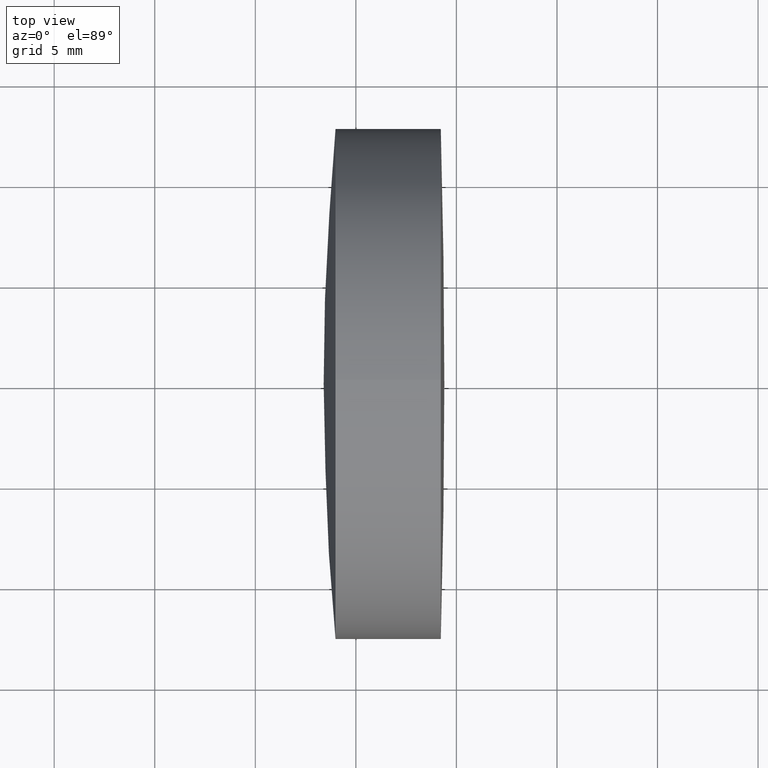
[diagram: clean part render]
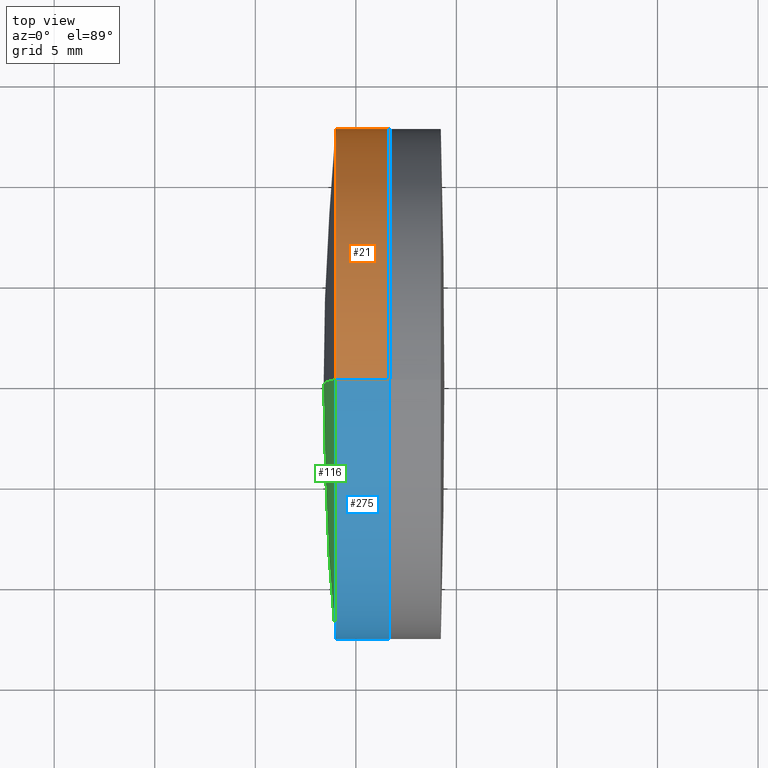
[diagram: same view with three faces highlighted in distinct colors, each labeled with its STEP entity id]
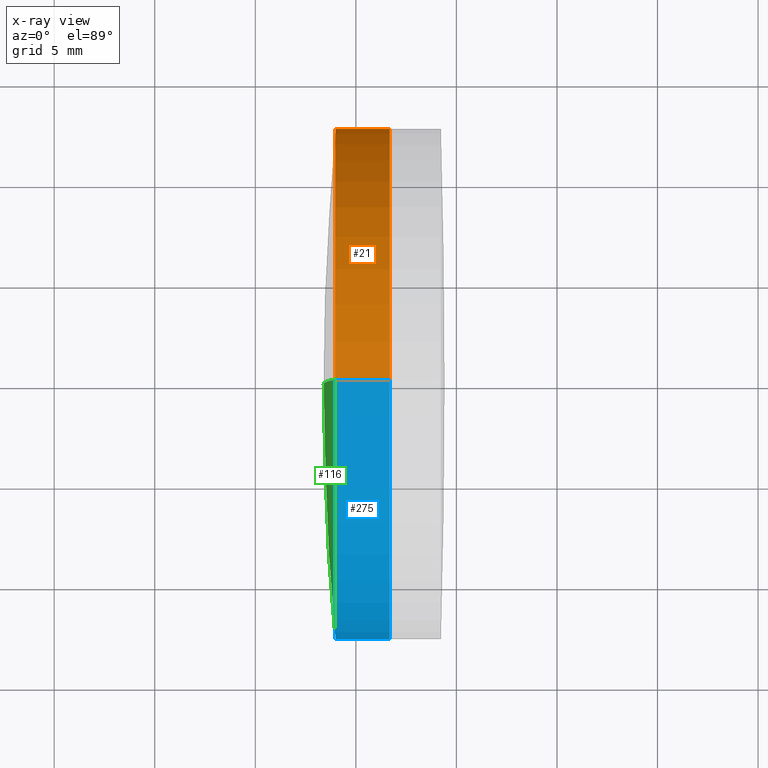
[diagram: x-ray of the same camera — body ghosted, the three highlighted faces saturated]
A machine part, top view with three faces highlighted in distinct colors.
The next image is the same camera in x-ray (body ghosted, the three faces saturated) — at least one of them is partly hidden behind the body in this view.
Their STEP definitions:

[orange] entity #21 — the highlighted cylindrical surface (partial cylindrical patch) has radius 12.7 mm, axis along (-1, -0, -0).
#9 = AXIS2_PLACEMENT_3D ( 'NONE', #260, #322, #71 ) ;
#19 = CYLINDRICAL_SURFACE ( 'NONE', #170, 12.69999999999999600 ) ;
#21 = ADVANCED_FACE ( 'NONE', ( #347 ), #19, .T. ) ;
#62 = VERTEX_POINT ( 'NONE', #145 ) ;
#70 = CARTESIAN_POINT ( 'NONE',  ( 291.6738128087178000, 0.0000000000000000000, 12.69999999999999400 ) ) ;
#71 = DIRECTION ( 'NONE',  ( 0.0000000000000000000, 0.0000000000000000000, 1.000000000000000000 ) ) ;
#76 = EDGE_CURVE ( 'NONE', #262, #169, #233, .T. ) ;
#84 = CARTESIAN_POINT ( 'NONE',  ( 288.9889351273912400, 0.0000000000000000000, 12.69999999999995700 ) ) ;
#94 = EDGE_CURVE ( 'NONE', #281, #62, #219, .T. ) ;
#96 = EDGE_CURVE ( 'NONE', #262, #281, #229, .T. ) ;
#134 = DIRECTION ( 'NONE',  ( -1.000000000000000000, -0.0000000000000000000, -0.0000000000000000000 ) ) ;
#142 = DIRECTION ( 'NONE',  ( -1.000000000000000000, -0.0000000000000000000, -0.0000000000000000000 ) ) ;
#145 = CARTESIAN_POINT ( 'NONE',  ( 288.9889351273912400, 1.555301434917133100E-015, -12.69999999999996000 ) ) ;
#151 = AXIS2_PLACEMENT_3D ( 'NONE', #292, #134, #243 ) ;
#160 = CARTESIAN_POINT ( 'NONE',  ( 235.8074506907544200, 1.555301434917138000E-015, -12.69999999999999600 ) ) ;
#169 = VERTEX_POINT ( 'NONE', #250 ) ;
#170 = AXIS2_PLACEMENT_3D ( 'NONE', #337, #142, #214 ) ;
#181 = EDGE_LOOP ( 'NONE', ( #311, #232, #206, #211 ) ) ;
#189 = EDGE_CURVE ( 'NONE', #169, #62, #220, .T. ) ;
#193 = DIRECTION ( 'NONE',  ( -1.000000000000000000, -0.0000000000000000000, -0.0000000000000000000 ) ) ;
#203 = VECTOR ( 'NONE', #277, 1000.000000000000000 ) ;
#206 = ORIENTED_EDGE ( 'NONE', *, *, #94, .F. ) ;
#211 = ORIENTED_EDGE ( 'NONE', *, *, #96, .F. ) ;
#214 = DIRECTION ( 'NONE',  ( 0.0000000000000000000, 0.0000000000000000000, 1.000000000000000000 ) ) ;
#219 = CIRCLE ( 'NONE', #151, 12.69999999999999600 ) ;
#220 = LINE ( 'NONE', #160, #327 ) ;
#229 = LINE ( 'NONE', #323, #203 ) ;
#232 = ORIENTED_EDGE ( 'NONE', *, *, #189, .T. ) ;
#233 = CIRCLE ( 'NONE', #9, 12.69999999999999400 ) ;
#243 = DIRECTION ( 'NONE',  ( 0.0000000000000000000, 0.0000000000000000000, 1.000000000000000000 ) ) ;
#250 = CARTESIAN_POINT ( 'NONE',  ( 291.6738128087178000, 1.555301434917138000E-015, -12.69999999999999400 ) ) ;
#260 = CARTESIAN_POINT ( 'NONE',  ( 291.6738128087178000, 0.0000000000000000000, 0.0000000000000000000 ) ) ;
#262 = VERTEX_POINT ( 'NONE', #70 ) ;
#277 = DIRECTION ( 'NONE',  ( -1.000000000000000000, -0.0000000000000000000, -0.0000000000000000000 ) ) ;
#281 = VERTEX_POINT ( 'NONE', #84 ) ;
#292 = CARTESIAN_POINT ( 'NONE',  ( 288.9889351273912400, 0.0000000000000000000, 0.0000000000000000000 ) ) ;
#311 = ORIENTED_EDGE ( 'NONE', *, *, #76, .T. ) ;
#322 = DIRECTION ( 'NONE',  ( -1.000000000000000000, -0.0000000000000000000, -0.0000000000000000000 ) ) ;
#323 = CARTESIAN_POINT ( 'NONE',  ( 235.8074506907544200, 0.0000000000000000000, 12.69999999999999600 ) ) ;
#327 = VECTOR ( 'NONE', #193, 1000.000000000000000 ) ;
#337 = CARTESIAN_POINT ( 'NONE',  ( 235.8074506907544200, 0.0000000000000000000, 0.0000000000000000000 ) ) ;
#347 = FACE_OUTER_BOUND ( 'NONE', #181, .T. ) ;

[blue] entity #275 — the highlighted cylindrical surface (partial cylindrical patch) has radius 12.7 mm, axis along (-1, -0, -0).
#20 = DIRECTION ( 'NONE',  ( -1.000000000000000000, -0.0000000000000000000, -0.0000000000000000000 ) ) ;
#24 = AXIS2_PLACEMENT_3D ( 'NONE', #231, #254, #183 ) ;
#32 = CIRCLE ( 'NONE', #69, 12.69999999999999400 ) ;
#35 = ORIENTED_EDGE ( 'NONE', *, *, #165, .T. ) ;
#62 = VERTEX_POINT ( 'NONE', #145 ) ;
#63 = CIRCLE ( 'NONE', #173, 12.69999999999999600 ) ;
#68 = DIRECTION ( 'NONE',  ( 0.0000000000000000000, 0.0000000000000000000, 1.000000000000000000 ) ) ;
#69 = AXIS2_PLACEMENT_3D ( 'NONE', #137, #20, #340 ) ;
#70 = CARTESIAN_POINT ( 'NONE',  ( 291.6738128087178000, 0.0000000000000000000, 12.69999999999999400 ) ) ;
#77 = EDGE_LOOP ( 'NONE', ( #95, #35, #237, #188 ) ) ;
#84 = CARTESIAN_POINT ( 'NONE',  ( 288.9889351273912400, 0.0000000000000000000, 12.69999999999995700 ) ) ;
#95 = ORIENTED_EDGE ( 'NONE', *, *, #189, .F. ) ;
#96 = EDGE_CURVE ( 'NONE', #262, #281, #229, .T. ) ;
#101 = CYLINDRICAL_SURFACE ( 'NONE', #24, 12.69999999999999600 ) ;
#137 = CARTESIAN_POINT ( 'NONE',  ( 291.6738128087178000, 0.0000000000000000000, 0.0000000000000000000 ) ) ;
#145 = CARTESIAN_POINT ( 'NONE',  ( 288.9889351273912400, 1.555301434917133100E-015, -12.69999999999996000 ) ) ;
#160 = CARTESIAN_POINT ( 'NONE',  ( 235.8074506907544200, 1.555301434917138000E-015, -12.69999999999999600 ) ) ;
#165 = EDGE_CURVE ( 'NONE', #169, #262, #32, .T. ) ;
#169 = VERTEX_POINT ( 'NONE', #250 ) ;
#173 = AXIS2_PLACEMENT_3D ( 'NONE', #194, #259, #68 ) ;
#183 = DIRECTION ( 'NONE',  ( 0.0000000000000000000, 0.0000000000000000000, 1.000000000000000000 ) ) ;
#188 = ORIENTED_EDGE ( 'NONE', *, *, #276, .F. ) ;
#189 = EDGE_CURVE ( 'NONE', #169, #62, #220, .T. ) ;
#193 = DIRECTION ( 'NONE',  ( -1.000000000000000000, -0.0000000000000000000, -0.0000000000000000000 ) ) ;
#194 = CARTESIAN_POINT ( 'NONE',  ( 288.9889351273912400, 0.0000000000000000000, 0.0000000000000000000 ) ) ;
#203 = VECTOR ( 'NONE', #277, 1000.000000000000000 ) ;
#204 = FACE_OUTER_BOUND ( 'NONE', #77, .T. ) ;
#220 = LINE ( 'NONE', #160, #327 ) ;
#229 = LINE ( 'NONE', #323, #203 ) ;
#231 = CARTESIAN_POINT ( 'NONE',  ( 235.8074506907544200, 0.0000000000000000000, 0.0000000000000000000 ) ) ;
#237 = ORIENTED_EDGE ( 'NONE', *, *, #96, .T. ) ;
#250 = CARTESIAN_POINT ( 'NONE',  ( 291.6738128087178000, 1.555301434917138000E-015, -12.69999999999999400 ) ) ;
#254 = DIRECTION ( 'NONE',  ( -1.000000000000000000, -0.0000000000000000000, -0.0000000000000000000 ) ) ;
#259 = DIRECTION ( 'NONE',  ( -1.000000000000000000, -0.0000000000000000000, -0.0000000000000000000 ) ) ;
#262 = VERTEX_POINT ( 'NONE', #70 ) ;
#275 = ADVANCED_FACE ( 'NONE', ( #204 ), #101, .T. ) ;
#276 = EDGE_CURVE ( 'NONE', #62, #281, #63, .T. ) ;
#277 = DIRECTION ( 'NONE',  ( -1.000000000000000000, -0.0000000000000000000, -0.0000000000000000000 ) ) ;
#281 = VERTEX_POINT ( 'NONE', #84 ) ;
#323 = CARTESIAN_POINT ( 'NONE',  ( 235.8074506907544200, 0.0000000000000000000, 12.69999999999999600 ) ) ;
#327 = VECTOR ( 'NONE', #193, 1000.000000000000000 ) ;
#340 = DIRECTION ( 'NONE',  ( 0.0000000000000000000, 0.0000000000000000000, 1.000000000000000000 ) ) ;

[green] entity #116 — the highlighted spherical surface has radius 137.1 mm.
#12 = EDGE_CURVE ( 'NONE', #281, #100, #332, .T. ) ;
#62 = VERTEX_POINT ( 'NONE', #145 ) ;
#63 = CIRCLE ( 'NONE', #173, 12.69999999999999600 ) ;
#68 = DIRECTION ( 'NONE',  ( 0.0000000000000000000, 0.0000000000000000000, 1.000000000000000000 ) ) ;
#79 = AXIS2_PLACEMENT_3D ( 'NONE', #88, #228, #171 ) ;
#80 = ORIENTED_EDGE ( 'NONE', *, *, #276, .T. ) ;
#84 = CARTESIAN_POINT ( 'NONE',  ( 288.9889351273912400, 0.0000000000000000000, 12.69999999999995700 ) ) ;
#88 = CARTESIAN_POINT ( 'NONE',  ( 425.4994475431022900, 0.0000000000000000000, -3.630634082691148100E-015 ) ) ;
#97 = ORIENTED_EDGE ( 'NONE', *, *, #12, .T. ) ;
#100 = VERTEX_POINT ( 'NONE', #257 ) ;
#116 = ADVANCED_FACE ( 'NONE', ( #147 ), #126, .T. ) ;
#120 = DIRECTION ( 'NONE',  ( 0.0000000000000000000, 0.0000000000000000000, 1.000000000000000000 ) ) ;
#124 = EDGE_LOOP ( 'NONE', ( #270, #80, #97 ) ) ;
#126 = SPHERICAL_SURFACE ( 'NONE', #298, 137.0999999999999900 ) ;
#145 = CARTESIAN_POINT ( 'NONE',  ( 288.9889351273912400, 1.555301434917133100E-015, -12.69999999999996000 ) ) ;
#147 = FACE_OUTER_BOUND ( 'NONE', #124, .T. ) ;
#163 = DIRECTION ( 'NONE',  ( 0.0000000000000000000, -1.000000000000000000, 0.0000000000000000000 ) ) ;
#171 = DIRECTION ( 'NONE',  ( 0.0000000000000000000, -1.224646799147353200E-016, 1.000000000000000000 ) ) ;
#173 = AXIS2_PLACEMENT_3D ( 'NONE', #194, #259, #68 ) ;
#174 = CARTESIAN_POINT ( 'NONE',  ( 425.4994475431022900, 0.0000000000000000000, -3.630634082691148100E-015 ) ) ;
#194 = CARTESIAN_POINT ( 'NONE',  ( 288.9889351273912400, 0.0000000000000000000, 0.0000000000000000000 ) ) ;
#221 = EDGE_CURVE ( 'NONE', #62, #100, #303, .T. ) ;
#228 = DIRECTION ( 'NONE',  ( -0.0000000000000000000, 1.000000000000000000, 1.224646799147353200E-016 ) ) ;
#257 = CARTESIAN_POINT ( 'NONE',  ( 288.3994475431023300, 0.0000000000000000000, 4.764319725463957600E-015 ) ) ;
#259 = DIRECTION ( 'NONE',  ( -1.000000000000000000, -0.0000000000000000000, -0.0000000000000000000 ) ) ;
#265 = AXIS2_PLACEMENT_3D ( 'NONE', #174, #163, #282 ) ;
#270 = ORIENTED_EDGE ( 'NONE', *, *, #221, .F. ) ;
#276 = EDGE_CURVE ( 'NONE', #62, #281, #63, .T. ) ;
#281 = VERTEX_POINT ( 'NONE', #84 ) ;
#282 = DIRECTION ( 'NONE',  ( 0.0000000000000000000, 0.0000000000000000000, -1.000000000000000000 ) ) ;
#288 = DIRECTION ( 'NONE',  ( 0.0000000000000000000, 1.000000000000000000, 0.0000000000000000000 ) ) ;
#298 = AXIS2_PLACEMENT_3D ( 'NONE', #334, #288, #120 ) ;
#303 = CIRCLE ( 'NONE', #79, 137.0999999999999900 ) ;
#332 = CIRCLE ( 'NONE', #265, 137.0999999999999900 ) ;
#334 = CARTESIAN_POINT ( 'NONE',  ( 425.4994475431022900, 0.0000000000000000000, -3.630634082691148100E-015 ) ) ;